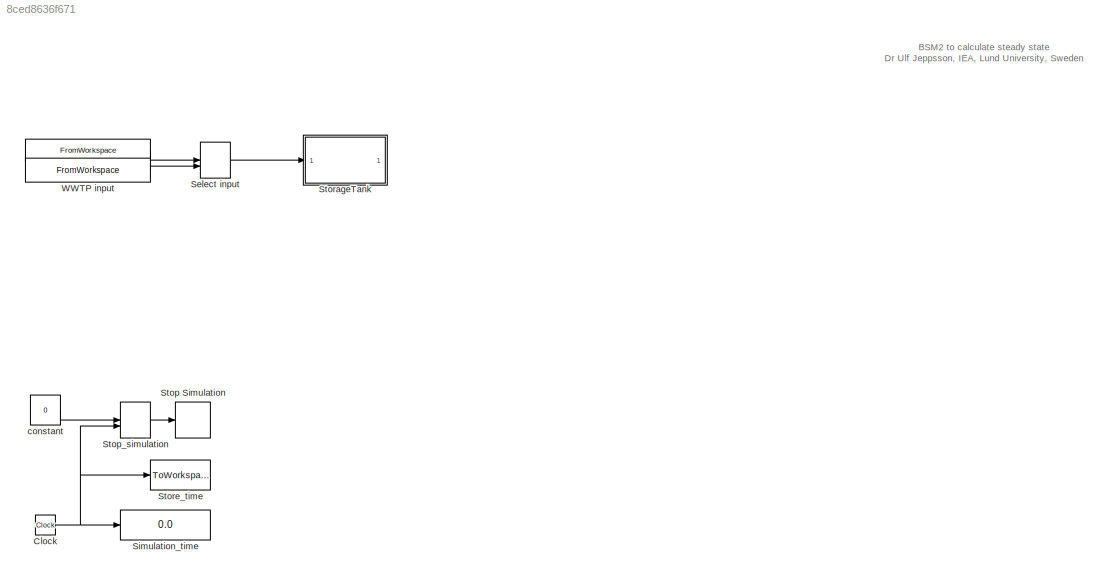
MODEL slx_8ced8636f671
KIND model
CONFIG AbsTol = 1e-8
CONFIG EnableMultiTasking = off
CONFIG FixedStep = 0.01
CONFIG MaxStep = auto
CONFIG MinStep = auto
CONFIG RelTol = 1e-5
CONFIG SampleTimeConstraint = Unconstrained
CONFIG SolverName = ode15s
CONFIG StartTime = 0.0
CONFIG StopTime = 200
BLOCK [FromWorkspace]  
  OutputAfterFinalValue = Holding final value
  SampleTime = -1
  VariableName = CONSTINFLUENT_ADM1_TEST
  ZeroCross = off
BLOCK [Constant]  constant
  Value = 0
BLOCK [Clock] Clock
BLOCK [ManualSwitch] Select input
BLOCK [Display] Simulation_time
  Decimation = 1
BLOCK [Stop] Stop Simulation
BLOCK [ManualSwitch] Stop_simulation
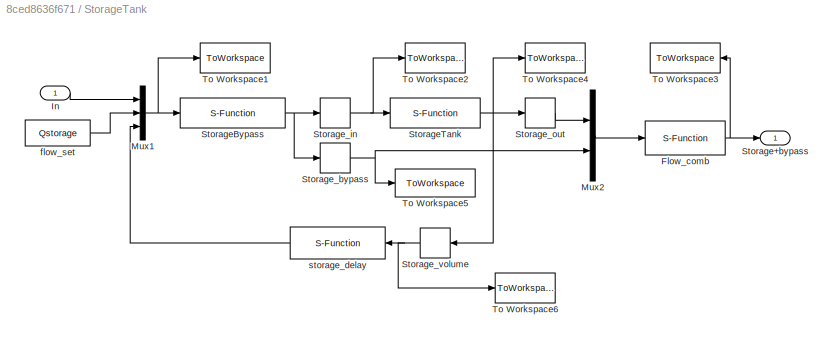
BLOCK [SubSystem] StorageTank
BLOCK [S-Function] StorageTank/Flow_comb
  EnableBusSupport = off
  FunctionName = combiner_bsm2
  SFcnIsStateOwnerBlock = off
  SFunctionDeploymentMode = off
BLOCK [Inport] StorageTank/In
BLOCK [Mux] StorageTank/Mux1
  DisplayOption = bar
  Inputs = 3
BLOCK [Mux] StorageTank/Mux2
  DisplayOption = bar
  Inputs = 2
BLOCK [Outport] StorageTank/Storage+bypass
BLOCK [S-Function] StorageTank/StorageBypass
  EnableBusSupport = off
  FunctionName = storagebypass_bsm2
  Parameters = VOL_S
  SFcnIsStateOwnerBlock = off
  SFunctionDeploymentMode = off
BLOCK [S-Function] StorageTank/StorageTank
  EnableBusSupport = off
  FunctionName = storage_bsm2
  Parameters = XINITSTORAGE,VOL_S,TEMPMODEL,ACTIVATE
  SFcnIsStateOwnerBlock = off
  SFunctionDeploymentMode = off
BLOCK [Selector] StorageTank/Storage_bypass
  IndexOptions = Index vector (dialog)
  Indices = [23:43]
  InputPortWidth = 43
  OutputSizes = 1
BLOCK [Selector] StorageTank/Storage_in
  IndexOptions = Index vector (dialog)
  Indices = [1:22]
  InputPortWidth = 43
  OutputSizes = 1
BLOCK [Selector] StorageTank/Storage_out
  IndexOptions = Index vector (dialog)
  Indices = [1:21]
  InputPortWidth = 22
  OutputSizes = 1
BLOCK [Selector] StorageTank/Storage_volume
  IndexOptions = Index vector (dialog)
  Indices = [22]
  InputPortWidth = 22
  OutputSizes = 1
BLOCK [ToWorkspace] StorageTank/To Workspace1
  MaxDataPoints = inf
  VariableName = storagetotin
BLOCK [ToWorkspace] StorageTank/To Workspace2
  MaxDataPoints = inf
  VariableName = storagein
BLOCK [ToWorkspace] StorageTank/To Workspace3
  MaxDataPoints = inf
  VariableName = storagetotout
BLOCK [ToWorkspace] StorageTank/To Workspace4
  MaxDataPoints = inf
  VariableName = storageout
BLOCK [ToWorkspace] StorageTank/To Workspace5
  MaxDataPoints = inf
  VariableName = storagebypass
BLOCK [ToWorkspace] StorageTank/To Workspace6
  MaxDataPoints = inf
  VariableName = storagevol
BLOCK [Constant] StorageTank/flow_set
  Value = Qstorage
BLOCK [S-Function] StorageTank/storage_delay
  EnableBusSupport = off
  FunctionName = storagedelay_bsm2
  Parameters = VOL_INIT_S,TIMEDELAY_S
  SFcnIsStateOwnerBlock = off
  SFunctionDeploymentMode = off
BLOCK [ToWorkspace] Store_time
  MaxDataPoints = inf
  VariableName = time
BLOCK [FromWorkspace] WWTP input
  OutputAfterFinalValue = Holding final value
  SampleTime = -1
  VariableName = DYNINFLUENT_BSM2
  ZeroCross = off
ANNOTATION (root): BSM2 to calculate steady state Dr Ulf Jeppsson, IEA, Lund University, Sweden
LINE  :1 -> Select input:1
LINE  constant:1 -> Stop_simulation:1
NET Clock:1 -> Simulation_time:1, Stop_simulation:2, Store_time:1
LINE Select input:1 -> StorageTank:1
LINE Stop_simulation:1 -> Stop Simulation:1
NET StorageTank/Flow_comb:1 -> StorageTank/Storage+bypass:1, StorageTank/To Workspace3:1
LINE StorageTank/In:1 -> StorageTank/Mux1:1
NET StorageTank/Mux1:1 -> StorageTank/StorageBypass:1, StorageTank/To Workspace1:1
LINE StorageTank/Mux2:1 -> StorageTank/Flow_comb:1
NET StorageTank/StorageBypass:1 -> StorageTank/Storage_bypass:1, StorageTank/Storage_in:1
NET StorageTank/StorageTank:1 -> StorageTank/Storage_out:1, StorageTank/Storage_volume:1, StorageTank/To Workspace4:1
NET StorageTank/Storage_bypass:1 -> StorageTank/Mux2:2, StorageTank/To Workspace5:1
NET StorageTank/Storage_in:1 -> StorageTank/StorageTank:1, StorageTank/To Workspace2:1
LINE StorageTank/Storage_out:1 -> StorageTank/Mux2:1
NET StorageTank/Storage_volume:1 -> StorageTank/To Workspace6:1, StorageTank/storage_delay:1
LINE StorageTank/flow_set:1 -> StorageTank/Mux1:2
LINE StorageTank/storage_delay:1 -> StorageTank/Mux1:3
LINE WWTP input:1 -> Select input:2
note: NET lines group one-source signal fan-out (src -> all destinations, sorted); 1:1 wires keep LINE
